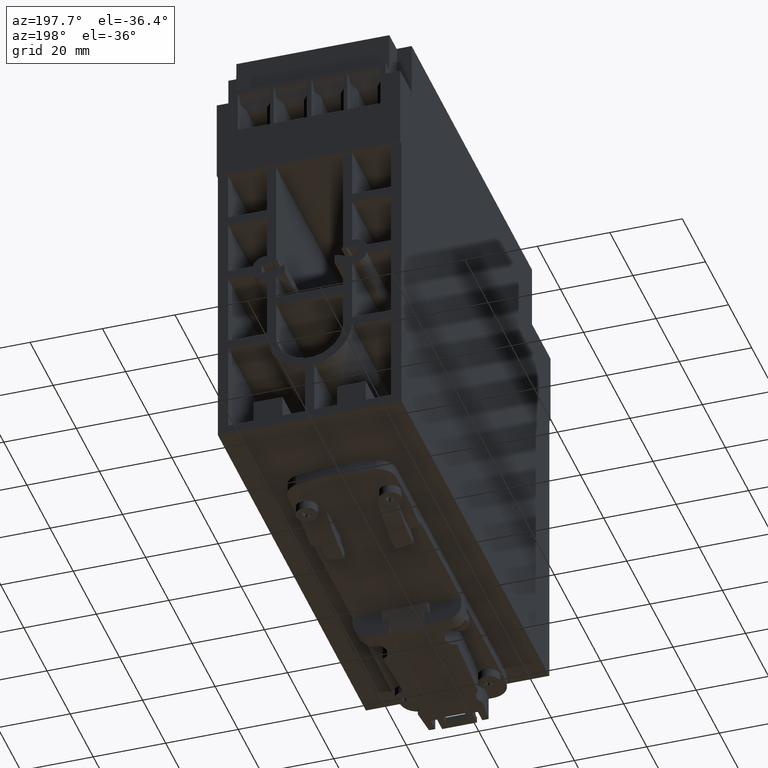
[diagram: clean part render]
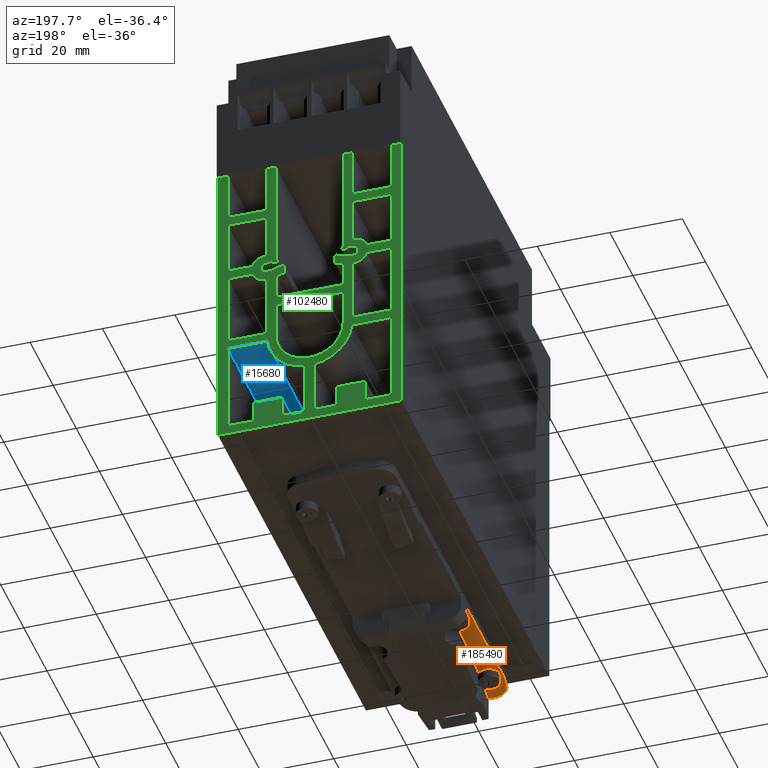
[diagram: same view with three faces highlighted in distinct colors, each labeled with its STEP entity id]
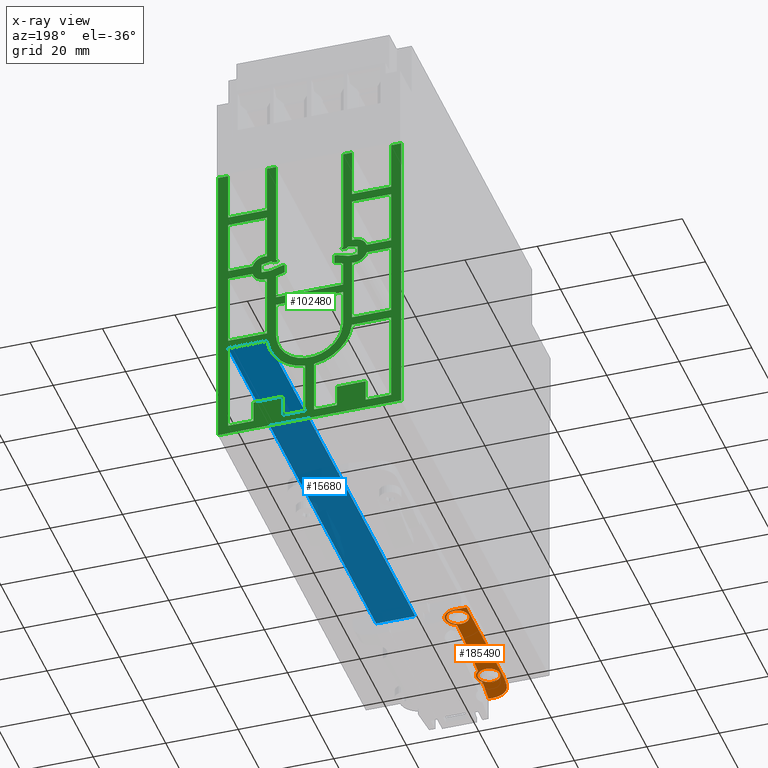
[diagram: x-ray of the same camera — body ghosted, the three highlighted faces saturated]
A machine part, auxiliary view with three faces highlighted in distinct colors.
The next image is the same camera in x-ray (body ghosted, the three faces saturated) — at least one of them is partly hidden behind the body in this view.
Their STEP definitions:

[orange] entity #185490 — the highlighted planar face has unit normal (0, 0, -1).
#142360=CARTESIAN_POINT('',(-9.64101615137754,19.,23.));
#142370=VERTEX_POINT('',#142360);
#142400=CARTESIAN_POINT('',(-9.64101615137754,19.,18.));
#142410=DIRECTION('',(0.,-1.,0.));
#142420=DIRECTION('',(0.,0.,1.));
#142430=AXIS2_PLACEMENT_3D('',#142400,#142410,#142420);
#142440=CIRCLE('',#142430,5.);
#142450=CARTESIAN_POINT('',(-14.5897327444315,19.,18.7142857142857));
#142460=VERTEX_POINT('',#142450);
#142470=EDGE_CURVE('',#142370,#142460,#142440,.T.);
#158770=CARTESIAN_POINT('',(-15.,19.,13.));
#158780=VERTEX_POINT('',#158770);
#158810=CARTESIAN_POINT('',(-15.,19.,-41.8023651948));
#158820=DIRECTION('',(0.,0.,1.));
#158830=VECTOR('',#158820,1.);
#158840=LINE('',#158810,#158830);
#158850=CARTESIAN_POINT('',(-15.,19.,-17.35));
#158860=VERTEX_POINT('',#158850);
#158870=EDGE_CURVE('',#158860,#158780,#158840,.T.);
#181780=CARTESIAN_POINT('',(-8.21648376099848,19.,23.));
#181790=VERTEX_POINT('',#181780);
#181820=CARTESIAN_POINT('',(25.,19.,23.));
#181830=DIRECTION('',(1.,0.,0.));
#181840=VECTOR('',#181830,1.);
#181850=LINE('',#181820,#181840);
#181860=EDGE_CURVE('',#142370,#181790,#181850,.T.);
#184400=CARTESIAN_POINT('',(-11.5,19.,-17.35));
#184410=VERTEX_POINT('',#184400);
#184440=CARTESIAN_POINT('',(-11.5,19.,-13.85));
#184450=DIRECTION('',(0.,-1.,0.));
#184460=DIRECTION('',(-1.,0.,0.));
#184470=AXIS2_PLACEMENT_3D('',#184440,#184450,#184460);
#184480=CIRCLE('',#184470,3.5);
#184490=CARTESIAN_POINT('',(-10.2342996994727,19.,-10.5868722444192));
#184500=VERTEX_POINT('',#184490);
#184510=EDGE_CURVE('',#184410,#184500,#184480,.T.);
#184700=CARTESIAN_POINT('',(1.06581410364015E-14,19.,-39.6));
#184710=DIRECTION('',(0.,-1.,0.));
#184720=DIRECTION('',(0.,0.,1.));
#184730=AXIS2_PLACEMENT_3D('',#184700,#184710,#184720);
#184740=PLANE('',#184730);
#184750=CARTESIAN_POINT('',(-11.5,19.,13.15));
#184760=DIRECTION('',(0.,-1.,0.));
#184770=DIRECTION('',(-1.,0.,-3.81561616076775E-17));
#184780=AXIS2_PLACEMENT_3D('',#184750,#184760,#184770);
#184790=CIRCLE('',#184780,3.);
#184800=CARTESIAN_POINT('',(-14.5,19.,13.15));
#184810=VERTEX_POINT('',#184800);
#184820=CARTESIAN_POINT('',(-8.5,19.,13.15));
#184830=VERTEX_POINT('',#184820);
#184840=EDGE_CURVE('',#184810,#184830,#184790,.T.);
#184850=ORIENTED_EDGE('',*,*,#184840,.F.);
#184860=EDGE_CURVE('',#184830,#184810,#184790,.T.);
#184870=ORIENTED_EDGE('',*,*,#184860,.F.);
#184880=EDGE_LOOP('',(#184870,#184850));
#184890=FACE_BOUND('',#184880,.T.);
#184900=CARTESIAN_POINT('',(-11.5,19.,-13.85));
#184910=DIRECTION('',(0.,-1.,0.));
#184920=DIRECTION('',(0.,0.,1.));
#184930=AXIS2_PLACEMENT_3D('',#184900,#184910,#184920);
#184940=CIRCLE('',#184930,3.);
#184950=CARTESIAN_POINT('',(-11.5,19.,-10.85));
#184960=VERTEX_POINT('',#184950);
#184970=CARTESIAN_POINT('',(-11.5,19.,-16.85));
#184980=VERTEX_POINT('',#184970);
#184990=EDGE_CURVE('',#184960,#184980,#184940,.T.);
#185000=ORIENTED_EDGE('',*,*,#184990,.F.);
#185010=EDGE_CURVE('',#184980,#184960,#184940,.T.);
#185020=ORIENTED_EDGE('',*,*,#185010,.F.);
#185030=EDGE_LOOP('',(#185020,#185000));
#185040=FACE_BOUND('',#185030,.T.);
#185050=ORIENTED_EDGE('',*,*,#142470,.T.);
#185060=ORIENTED_EDGE('',*,*,#181860,.F.);
#185070=CARTESIAN_POINT('',(391.2,19.,-17.85));
#185080=DIRECTION('',(0.,-1.,0.));
#185090=DIRECTION('',(0.,0.,-1.));
#185100=AXIS2_PLACEMENT_3D('',#185070,#185080,#185090);
#185110=CIRCLE('',#185100,401.5);
#185120=CARTESIAN_POINT('',(-8.91199221675921,19.,15.5063140100346));
#185130=VERTEX_POINT('',#185120);
#185140=EDGE_CURVE('',#181790,#185130,#185110,.T.);
#185150=ORIENTED_EDGE('',*,*,#185140,.F.);
#185160=CARTESIAN_POINT('',(-11.5,19.,13.15));
#185170=DIRECTION('',(0.,-1.,0.));
#185180=DIRECTION('',(-1.,0.,0.));
#185190=AXIS2_PLACEMENT_3D('',#185160,#185170,#185180);
#185200=CIRCLE('',#185190,3.5);
#185210=CARTESIAN_POINT('',(-9.30312722696155,19.,10.4253440549159));
#185220=VERTEX_POINT('',#185210);
#185230=EDGE_CURVE('',#185220,#185130,#185200,.T.);
#185240=ORIENTED_EDGE('',*,*,#185230,.T.);
#185250=CARTESIAN_POINT('',(391.2,19.,-17.85));
#185260=DIRECTION('',(0.,-1.,0.));
#185270=DIRECTION('',(0.,0.,-1.));
#185280=AXIS2_PLACEMENT_3D('',#185250,#185260,#185270);
#185290=CIRCLE('',#185280,401.5);
#185300=EDGE_CURVE('',#185220,#184500,#185290,.T.);
#185310=ORIENTED_EDGE('',*,*,#185300,.F.);
#185320=ORIENTED_EDGE('',*,*,#184510,.T.);
#185330=CARTESIAN_POINT('',(25.,19.,-17.35));
#185340=DIRECTION('',(1.,0.,0.));
#185350=VECTOR('',#185340,1.);
#185360=LINE('',#185330,#185350);
#185370=EDGE_CURVE('',#158860,#184410,#185360,.T.);
#185380=ORIENTED_EDGE('',*,*,#185370,.T.);
#185390=ORIENTED_EDGE('',*,*,#158870,.F.);
#185400=CARTESIAN_POINT('',(25.,19.,13.));
#185410=DIRECTION('',(0.,-1.,0.));
#185420=DIRECTION('',(-1.,0.,0.));
#185430=AXIS2_PLACEMENT_3D('',#185400,#185410,#185420);
#185440=CIRCLE('',#185430,40.);
#185450=EDGE_CURVE('',#142460,#158780,#185440,.T.);
#185460=ORIENTED_EDGE('',*,*,#185450,.T.);
#185470=EDGE_LOOP('',(#185460,#185390,#185380,#185320,#185310,#185240,
#185150,#185060,#185050));
#185480=FACE_OUTER_BOUND('',#185470,.T.);
#185490=ADVANCED_FACE('',(#184890,#185040,#185480),#184740,.T.);

[blue] entity #15680 — the highlighted planar face has unit normal (-0, 0, -1).
#6520=CARTESIAN_POINT('',(22.5,49.75,22.));
#6530=VERTEX_POINT('',#6520);
#6560=CARTESIAN_POINT('',(0.,49.75,22.));
#6570=DIRECTION('',(1.,0.,0.));
#6580=VECTOR('',#6570,1.);
#6590=LINE('',#6560,#6580);
#6600=CARTESIAN_POINT('',(11.6833214455479,49.75,22.));
#6610=VERTEX_POINT('',#6600);
#6620=EDGE_CURVE('',#6610,#6530,#6590,.T.);
#13130=CARTESIAN_POINT('',(22.5,49.75,-106.));
#13140=VERTEX_POINT('',#13130);
#13170=CARTESIAN_POINT('',(22.5,49.75,0.));
#13180=DIRECTION('',(0.,0.,-1.));
#13190=VECTOR('',#13180,1.);
#13200=LINE('',#13170,#13190);
#13210=EDGE_CURVE('',#6530,#13140,#13200,.T.);
#15260=CARTESIAN_POINT('',(11.6833214455479,49.75,22.076323));
#15270=DIRECTION('',(0.,0.,-1.));
#15280=VECTOR('',#15270,1.);
#15290=LINE('',#15260,#15280);
#15300=CARTESIAN_POINT('',(11.6833214455479,49.75,-106.));
#15310=VERTEX_POINT('',#15300);
#15320=EDGE_CURVE('',#6610,#15310,#15290,.T.);
#15520=CARTESIAN_POINT('',(22.7717399638613,49.75,22.076323));
#15530=DIRECTION('',(-0.,-1.,-0.));
#15540=DIRECTION('',(-1.,0.,0.));
#15550=AXIS2_PLACEMENT_3D('',#15520,#15530,#15540);
#15560=PLANE('',#15550);
#15570=ORIENTED_EDGE('',*,*,#13210,.F.);
#15580=CARTESIAN_POINT('',(0.,49.75,-106.));
#15590=DIRECTION('',(-1.,0.,0.));
#15600=VECTOR('',#15590,1.);
#15610=LINE('',#15580,#15600);
#15620=EDGE_CURVE('',#13140,#15310,#15610,.T.);
#15630=ORIENTED_EDGE('',*,*,#15620,.F.);
#15640=ORIENTED_EDGE('',*,*,#15320,.T.);
#15650=ORIENTED_EDGE('',*,*,#6620,.F.);
#15660=EDGE_LOOP('',(#15650,#15640,#15630,#15570));
#15670=FACE_OUTER_BOUND('',#15660,.T.);
#15680=ADVANCED_FACE('',(#15670),#15560,.T.);

[green] entity #102480 — the highlighted planar face has unit normal (0, 1, 0).
#1510=CARTESIAN_POINT('',(25.2993386672442,106.,-106.));
#1520=VERTEX_POINT('',#1510);
#1550=CARTESIAN_POINT('',(25.2993386672442,0.,-106.));
#1560=DIRECTION('',(0.,-1.,0.));
#1570=VECTOR('',#1560,1.);
#1580=LINE('',#1550,#1570);
#1590=CARTESIAN_POINT('',(25.2993386672442,22.,-106.));
#1600=VERTEX_POINT('',#1590);
#1610=EDGE_CURVE('',#1520,#1600,#1580,.T.);
#2020=CARTESIAN_POINT('',(-15.7499999999949,75.,-106.));
#2030=VERTEX_POINT('',#2020);
#2180=CARTESIAN_POINT('',(-22.5,75.,-106.));
#2190=VERTEX_POINT('',#2180);
#2220=CARTESIAN_POINT('',(0.,75.,-106.));
#2230=DIRECTION('',(1.,0.,0.));
#2240=VECTOR('',#2230,1.);
#2250=LINE('',#2220,#2240);
#2260=EDGE_CURVE('',#2190,#2030,#2250,.T.);
#3390=CARTESIAN_POINT('',(0.,22.,-106.));
#3400=DIRECTION('',(-1.,0.,0.));
#3410=VECTOR('',#3400,1.);
#3420=LINE('',#3390,#3410);
#3430=CARTESIAN_POINT('',(-25.3,22.,-106.));
#3440=VERTEX_POINT('',#3430);
#3450=EDGE_CURVE('',#1600,#3440,#3420,.T.);
#11310=CARTESIAN_POINT('',(9.24999999999998,51.,-106.));
#11320=VERTEX_POINT('',#11310);
#11350=CARTESIAN_POINT('',(9.25,0.,-106.));
#11360=DIRECTION('',(0.,1.,0.));
#11370=VECTOR('',#11360,1.);
#11380=LINE('',#11350,#11370);
#11390=CARTESIAN_POINT('',(9.25,61.,-106.));
#11400=VERTEX_POINT('',#11390);
#11410=EDGE_CURVE('',#11320,#11400,#11380,.T.);
#11660=CARTESIAN_POINT('',(0.,61.,-106.));
#11670=DIRECTION('',(-1.,0.,0.));
#11680=VECTOR('',#11670,1.);
#11690=LINE('',#11660,#11680);
#11700=CARTESIAN_POINT('',(-9.25,61.,-106.));
#11710=VERTEX_POINT('',#11700);
#11720=EDGE_CURVE('',#11400,#11710,#11690,.T.);
#11970=CARTESIAN_POINT('',(-9.25,0.,-106.));
#11980=DIRECTION('',(0.,-1.,0.));
#11990=VECTOR('',#11980,1.);
#12000=LINE('',#11970,#11990);
#12010=CARTESIAN_POINT('',(-9.24999999999998,51.,-106.));
#12020=VERTEX_POINT('',#12010);
#12030=EDGE_CURVE('',#11710,#12020,#12000,.T.);
#12290=CARTESIAN_POINT('',(0.,51.,-106.));
#12300=DIRECTION('',(0.,0.,1.));
#12310=DIRECTION('',(1.,0.,0.));
#12320=AXIS2_PLACEMENT_3D('',#12290,#12300,#12310);
#12330=CIRCLE('',#12320,9.24999999999998);
#12340=EDGE_CURVE('',#12020,#11320,#12330,.T.);
#13050=CARTESIAN_POINT('',(22.5,24.5,-106.));
#13060=VERTEX_POINT('',#13050);
#13090=CARTESIAN_POINT('',(22.5,0.,-106.));
#13100=DIRECTION('',(0.,1.,0.));
#13110=VECTOR('',#13100,1.);
#13120=LINE('',#13090,#13110);
#13130=CARTESIAN_POINT('',(22.5,49.75,-106.));
#13140=VERTEX_POINT('',#13130);
#13150=EDGE_CURVE('',#13060,#13140,#13120,.T.);
#13430=CARTESIAN_POINT('',(15.5,24.5,-106.));
#13440=VERTEX_POINT('',#13430);
#13470=CARTESIAN_POINT('',(0.,24.5,-106.));
#13480=DIRECTION('',(1.,0.,0.));
#13490=VECTOR('',#13480,1.);
#13500=LINE('',#13470,#13490);
#13510=EDGE_CURVE('',#13440,#13060,#13500,.T.);
#13740=CARTESIAN_POINT('',(15.5,30.5,-106.));
#13750=VERTEX_POINT('',#13740);
#13780=CARTESIAN_POINT('',(15.5,0.,-106.));
#13790=DIRECTION('',(0.,-1.,0.));
#13800=VECTOR('',#13790,1.);
#13810=LINE('',#13780,#13800);
#13820=EDGE_CURVE('',#13750,#13440,#13810,.T.);
#14050=CARTESIAN_POINT('',(7.5,30.5,-106.));
#14060=VERTEX_POINT('',#14050);
#14090=CARTESIAN_POINT('',(0.,30.5,-106.));
#14100=DIRECTION('',(1.,0.,0.));
#14110=VECTOR('',#14100,1.);
#14120=LINE('',#14090,#14110);
#14130=EDGE_CURVE('',#14060,#13750,#14120,.T.);
#14360=CARTESIAN_POINT('',(7.5,24.5,-106.));
#14370=VERTEX_POINT('',#14360);
#14400=CARTESIAN_POINT('',(7.5,0.,-106.));
#14410=DIRECTION('',(0.,1.,0.));
#14420=VECTOR('',#14410,1.);
#14430=LINE('',#14400,#14420);
#14440=EDGE_CURVE('',#14370,#14060,#14430,.T.);
#14670=CARTESIAN_POINT('',(1.25,24.5,-106.));
#14680=VERTEX_POINT('',#14670);
#14710=CARTESIAN_POINT('',(0.,24.5,-106.));
#14720=DIRECTION('',(1.,0.,0.));
#14730=VECTOR('',#14720,1.);
#14740=LINE('',#14710,#14730);
#14750=EDGE_CURVE('',#14680,#14370,#14740,.T.);
#14980=CARTESIAN_POINT('',(1.25,39.3166785544521,-106.));
#14990=VERTEX_POINT('',#14980);
#15020=CARTESIAN_POINT('',(1.25,0.,-106.));
#15030=DIRECTION('',(0.,-1.,0.));
#15040=VECTOR('',#15030,1.);
#15050=LINE('',#15020,#15040);
#15060=EDGE_CURVE('',#14990,#14680,#15050,.T.);
#15300=CARTESIAN_POINT('',(11.6833214455479,49.75,-106.));
#15310=VERTEX_POINT('',#15300);
#15340=CARTESIAN_POINT('',(2.1316282072803E-14,51.,-106.));
#15350=DIRECTION('',(0.,0.,-1.));
#15360=DIRECTION('',(-1.,0.,0.));
#15370=AXIS2_PLACEMENT_3D('',#15340,#15350,#15360);
#15380=CIRCLE('',#15370,11.75);
#15390=EDGE_CURVE('',#15310,#14990,#15380,.T.);
#15580=CARTESIAN_POINT('',(0.,49.75,-106.));
#15590=DIRECTION('',(-1.,0.,0.));
#15600=VECTOR('',#15590,1.);
#15610=LINE('',#15580,#15600);
#15620=EDGE_CURVE('',#13140,#15310,#15610,.T.);
#16240=CARTESIAN_POINT('',(11.75,52.25,-106.));
#16250=VERTEX_POINT('',#16240);
#16280=CARTESIAN_POINT('',(0.,52.25,-106.));
#16290=DIRECTION('',(1.,0.,0.));
#16300=VECTOR('',#16290,1.);
#16310=LINE('',#16280,#16300);
#16320=CARTESIAN_POINT('',(22.5,52.25,-106.));
#16330=VERTEX_POINT('',#16320);
#16340=EDGE_CURVE('',#16250,#16330,#16310,.T.);
#16620=CARTESIAN_POINT('',(11.75,70.0450336350756,-106.));
#16630=VERTEX_POINT('',#16620);
#16660=CARTESIAN_POINT('',(11.75,0.,-106.));
#16670=DIRECTION('',(0.,-1.,0.));
#16680=VECTOR('',#16670,1.);
#16690=LINE('',#16660,#16680);
#16700=EDGE_CURVE('',#16630,#16250,#16690,.T.);
#16940=CARTESIAN_POINT('',(15.7499999999949,72.5,-106.));
#16950=VERTEX_POINT('',#16940);
#16980=CARTESIAN_POINT('',(12.39167088138,73.4857106731,-106.));
#16990=DIRECTION('',(0.,0.,-1.));
#17000=DIRECTION('',(-1.,0.,0.));
#17010=AXIS2_PLACEMENT_3D('',#16980,#16990,#17000);
#17020=CIRCLE('',#17010,3.49999999999997);
#17030=EDGE_CURVE('',#16950,#16630,#17020,.T.);
#17250=CARTESIAN_POINT('',(22.5,72.5,-106.));
#17260=VERTEX_POINT('',#17250);
#17290=CARTESIAN_POINT('',(0.,72.5,-106.));
#17300=DIRECTION('',(-1.,0.,0.));
#17310=VECTOR('',#17300,1.);
#17320=LINE('',#17290,#17310);
#17330=EDGE_CURVE('',#17260,#16950,#17320,.T.);
#17530=CARTESIAN_POINT('',(22.5,0.,-106.));
#17540=DIRECTION('',(0.,1.,0.));
#17550=VECTOR('',#17540,1.);
#17560=LINE('',#17530,#17550);
#17570=EDGE_CURVE('',#16330,#17260,#17560,.T.);
#18110=CARTESIAN_POINT('',(-11.75,77.4549663649245,-106.));
#18120=VERTEX_POINT('',#18110);
#18150=CARTESIAN_POINT('',(-11.75,0.,-106.));
#18160=DIRECTION('',(0.,1.,0.));
#18170=VECTOR('',#18160,1.);
#18180=LINE('',#18150,#18170);
#18190=CARTESIAN_POINT('',(-11.75,90.,-106.));
#18200=VERTEX_POINT('',#18190);
#18210=EDGE_CURVE('',#18120,#18200,#18180,.T.);
#18470=CARTESIAN_POINT('',(-12.39167088138,74.0142893269,-106.));
#18480=DIRECTION('',(0.,0.,-1.));
#18490=DIRECTION('',(-1.,0.,0.));
#18500=AXIS2_PLACEMENT_3D('',#18470,#18480,#18490);
#18510=CIRCLE('',#18500,3.50000000000004);
#18520=EDGE_CURVE('',#2030,#18120,#18510,.T.);
#19210=CARTESIAN_POINT('',(-22.5,90.,-106.));
#19220=VERTEX_POINT('',#19210);
#19250=CARTESIAN_POINT('',(-22.5,0.,-106.));
#19260=DIRECTION('',(0.,-1.,0.));
#19270=VECTOR('',#19260,1.);
#19280=LINE('',#19250,#19270);
#19290=EDGE_CURVE('',#19220,#2190,#19280,.T.);
#19490=CARTESIAN_POINT('',(0.,90.,-106.));
#19500=DIRECTION('',(-1.,0.,0.));
#19510=VECTOR('',#19500,1.);
#19520=LINE('',#19490,#19510);
#19530=EDGE_CURVE('',#18200,#19220,#19520,.T.);
#20270=CARTESIAN_POINT('',(-7.5,30.5,-106.));
#20280=VERTEX_POINT('',#20270);
#20310=CARTESIAN_POINT('',(-7.5,0.,-106.));
#20320=DIRECTION('',(0.,-1.,0.));
#20330=VECTOR('',#20320,1.);
#20340=LINE('',#20310,#20330);
#20350=CARTESIAN_POINT('',(-7.5,24.5,-106.));
#20360=VERTEX_POINT('',#20350);
#20370=EDGE_CURVE('',#20280,#20360,#20340,.T.);
#20650=CARTESIAN_POINT('',(-15.5,30.5,-106.));
#20660=VERTEX_POINT('',#20650);
#20690=CARTESIAN_POINT('',(0.,30.5,-106.));
#20700=DIRECTION('',(1.,0.,0.));
#20710=VECTOR('',#20700,1.);
#20720=LINE('',#20690,#20710);
#20730=EDGE_CURVE('',#20660,#20280,#20720,.T.);
#20960=CARTESIAN_POINT('',(-15.5,24.5,-106.));
#20970=VERTEX_POINT('',#20960);
#21000=CARTESIAN_POINT('',(-15.5,0.,-106.));
#21010=DIRECTION('',(0.,1.,0.));
#21020=VECTOR('',#21010,1.);
#21030=LINE('',#21000,#21020);
#21040=EDGE_CURVE('',#20970,#20660,#21030,.T.);
#21270=CARTESIAN_POINT('',(-22.5,24.5,-106.));
#21280=VERTEX_POINT('',#21270);
#21310=CARTESIAN_POINT('',(0.,24.5,-106.));
#21320=DIRECTION('',(1.,0.,0.));
#21330=VECTOR('',#21320,1.);
#21340=LINE('',#21310,#21330);
#21350=EDGE_CURVE('',#21280,#20970,#21340,.T.);
#21580=CARTESIAN_POINT('',(-22.5,49.75,-106.));
#21590=VERTEX_POINT('',#21580);
#21620=CARTESIAN_POINT('',(-22.5,0.,-106.));
#21630=DIRECTION('',(0.,-1.,0.));
#21640=VECTOR('',#21630,1.);
#21650=LINE('',#21620,#21640);
#21660=EDGE_CURVE('',#21590,#21280,#21650,.T.);
#21890=CARTESIAN_POINT('',(-11.6833214455479,49.75,-106.));
#21900=VERTEX_POINT('',#21890);
#21930=CARTESIAN_POINT('',(0.,49.75,-106.));
#21940=DIRECTION('',(-1.,0.,0.));
#21950=VECTOR('',#21940,1.);
#21960=LINE('',#21930,#21950);
#21970=EDGE_CURVE('',#21900,#21590,#21960,.T.);
#22210=CARTESIAN_POINT('',(-1.25,39.3166785544521,-106.));
#22220=VERTEX_POINT('',#22210);
#22250=CARTESIAN_POINT('',(-1.4210854715202E-14,51.,-106.));
#22260=DIRECTION('',(0.,0.,-1.));
#22270=DIRECTION('',(-1.,0.,0.));
#22280=AXIS2_PLACEMENT_3D('',#22250,#22260,#22270);
#22290=CIRCLE('',#22280,11.75);
#22300=EDGE_CURVE('',#22220,#21900,#22290,.T.);
#22520=CARTESIAN_POINT('',(-1.25,24.5,-106.));
#22530=VERTEX_POINT('',#22520);
#22560=CARTESIAN_POINT('',(-1.25,0.,-106.));
#22570=DIRECTION('',(0.,1.,0.));
#22580=VECTOR('',#22570,1.);
#22590=LINE('',#22560,#22580);
#22600=EDGE_CURVE('',#22530,#22220,#22590,.T.);
#22800=CARTESIAN_POINT('',(0.,24.5,-106.));
#22810=DIRECTION('',(1.,0.,0.));
#22820=VECTOR('',#22810,1.);
#22830=LINE('',#22800,#22820);
#22840=EDGE_CURVE('',#20360,#22530,#22830,.T.);
#23870=CARTESIAN_POINT('',(11.75,77.4549663649245,-106.));
#23880=VERTEX_POINT('',#23870);
#23910=CARTESIAN_POINT('',(12.39167088138,74.0142893269001,-106.));
#23920=DIRECTION('',(0.,0.,-1.));
#23930=DIRECTION('',(-1.,0.,0.));
#23940=AXIS2_PLACEMENT_3D('',#23910,#23920,#23930);
#23950=CIRCLE('',#23940,3.49999999999991);
#23960=CARTESIAN_POINT('',(15.7499999999949,75.,-106.));
#23970=VERTEX_POINT('',#23960);
#23980=EDGE_CURVE('',#23880,#23970,#23950,.T.);
#24250=CARTESIAN_POINT('',(11.75,90.,-106.));
#24260=VERTEX_POINT('',#24250);
#24290=CARTESIAN_POINT('',(11.75,0.,-106.));
#24300=DIRECTION('',(0.,-1.,0.));
#24310=VECTOR('',#24300,1.);
#24320=LINE('',#24290,#24310);
#24330=EDGE_CURVE('',#24260,#23880,#24320,.T.);
#24560=CARTESIAN_POINT('',(22.5,90.,-106.));
#24570=VERTEX_POINT('',#24560);
#24600=CARTESIAN_POINT('',(0.,90.,-106.));
#24610=DIRECTION('',(-1.,0.,0.));
#24620=VECTOR('',#24610,1.);
#24630=LINE('',#24600,#24620);
#24640=EDGE_CURVE('',#24570,#24260,#24630,.T.);
#24870=CARTESIAN_POINT('',(22.5,75.,-106.));
#24880=VERTEX_POINT('',#24870);
#24910=CARTESIAN_POINT('',(22.5,0.,-106.));
#24920=DIRECTION('',(0.,1.,0.));
#24930=VECTOR('',#24920,1.);
#24940=LINE('',#24910,#24930);
#24950=EDGE_CURVE('',#24880,#24570,#24940,.T.);
#25150=CARTESIAN_POINT('',(0.,75.,-106.));
#25160=DIRECTION('',(1.,0.,0.));
#25170=VECTOR('',#25160,1.);
#25180=LINE('',#25150,#25170);
#25190=EDGE_CURVE('',#23970,#24880,#25180,.T.);
#25890=CARTESIAN_POINT('',(-22.5,52.25,-106.));
#25900=VERTEX_POINT('',#25890);
#25930=CARTESIAN_POINT('',(0.,52.25,-106.));
#25940=DIRECTION('',(1.,0.,0.));
#25950=VECTOR('',#25940,1.);
#25960=LINE('',#25930,#25950);
#25970=CARTESIAN_POINT('',(-11.75,52.25,-106.));
#25980=VERTEX_POINT('',#25970);
#25990=EDGE_CURVE('',#25900,#25980,#25960,.T.);
#26270=CARTESIAN_POINT('',(-22.5,72.5,-106.));
#26280=VERTEX_POINT('',#26270);
#26310=CARTESIAN_POINT('',(-22.5,0.,-106.));
#26320=DIRECTION('',(0.,-1.,0.));
#26330=VECTOR('',#26320,1.);
#26340=LINE('',#26310,#26330);
#26350=EDGE_CURVE('',#26280,#25900,#26340,.T.);
#26580=CARTESIAN_POINT('',(-15.7499999999949,72.5,-106.));
#26590=VERTEX_POINT('',#26580);
#26620=CARTESIAN_POINT('',(0.,72.5,-106.));
#26630=DIRECTION('',(-1.,0.,0.));
#26640=VECTOR('',#26630,1.);
#26650=LINE('',#26620,#26640);
#26660=EDGE_CURVE('',#26590,#26280,#26650,.T.);
#26900=CARTESIAN_POINT('',(-11.75,70.0450336350755,-106.));
#26910=VERTEX_POINT('',#26900);
#26940=CARTESIAN_POINT('',(-12.39167088138,73.4857106731,-106.));
#26950=DIRECTION('',(0.,0.,-1.));
#26960=DIRECTION('',(-1.,0.,0.));
#26970=AXIS2_PLACEMENT_3D('',#26940,#26950,#26960);
#26980=CIRCLE('',#26970,3.50000000000002);
#26990=EDGE_CURVE('',#26910,#26590,#26980,.T.);
#27180=CARTESIAN_POINT('',(-11.75,0.,-106.));
#27190=DIRECTION('',(0.,1.,0.));
#27200=VECTOR('',#27190,1.);
#27210=LINE('',#27180,#27200);
#27220=EDGE_CURVE('',#25980,#26910,#27210,.T.);
#27820=CARTESIAN_POINT('',(9.25,106.,-106.));
#27830=VERTEX_POINT('',#27820);
#27860=CARTESIAN_POINT('',(0.,106.,-106.));
#27870=DIRECTION('',(-1.,0.,0.));
#27880=VECTOR('',#27870,1.);
#27890=LINE('',#27860,#27880);
#27900=CARTESIAN_POINT('',(11.75,106.,-106.));
#27910=VERTEX_POINT('',#27900);
#27920=EDGE_CURVE('',#27910,#27830,#27890,.T.);
#28020=CARTESIAN_POINT('',(0.,106.,-106.));
#28030=DIRECTION('',(-1.,0.,0.));
#28040=VECTOR('',#28030,1.);
#28050=LINE('',#28020,#28040);
#28060=CARTESIAN_POINT('',(-9.25,106.,-106.));
#28070=VERTEX_POINT('',#28060);
#28080=CARTESIAN_POINT('',(-11.75,106.,-106.));
#28090=VERTEX_POINT('',#28080);
#28100=EDGE_CURVE('',#28070,#28090,#28050,.T.);
#28310=CARTESIAN_POINT('',(-25.3,106.,-106.));
#28320=VERTEX_POINT('',#28310);
#28370=CARTESIAN_POINT('',(0.,106.,-106.));
#28380=DIRECTION('',(-1.,0.,0.));
#28390=VECTOR('',#28380,1.);
#28400=LINE('',#28370,#28390);
#28410=CARTESIAN_POINT('',(-22.5,106.,-106.));
#28420=VERTEX_POINT('',#28410);
#28430=EDGE_CURVE('',#28420,#28320,#28400,.T.);
#28680=CARTESIAN_POINT('',(22.5,106.,-106.));
#28690=VERTEX_POINT('',#28680);
#28720=CARTESIAN_POINT('',(0.,106.,-106.));
#28730=DIRECTION('',(-1.,0.,0.));
#28740=VECTOR('',#28730,1.);
#28750=LINE('',#28720,#28740);
#28760=EDGE_CURVE('',#1520,#28690,#28750,.T.);
#29010=CARTESIAN_POINT('',(-22.5,0.,-106.));
#29020=DIRECTION('',(0.,-1.,0.));
#29030=VECTOR('',#29020,1.);
#29040=LINE('',#29010,#29030);
#29050=CARTESIAN_POINT('',(-22.5,92.5,-106.));
#29060=VERTEX_POINT('',#29050);
#29070=EDGE_CURVE('',#28420,#29060,#29040,.T.);
#29320=CARTESIAN_POINT('',(0.,92.5,-106.));
#29330=DIRECTION('',(1.,0.,0.));
#29340=VECTOR('',#29330,1.);
#29350=LINE('',#29320,#29340);
#29360=CARTESIAN_POINT('',(-11.75,92.5,-106.));
#29370=VERTEX_POINT('',#29360);
#29380=EDGE_CURVE('',#29060,#29370,#29350,.T.);
#29630=CARTESIAN_POINT('',(-11.75,0.,-106.));
#29640=DIRECTION('',(0.,1.,0.));
#29650=VECTOR('',#29640,1.);
#29660=LINE('',#29630,#29650);
#29670=EDGE_CURVE('',#29370,#28090,#29660,.T.);
#30670=CARTESIAN_POINT('',(11.75,0.,-106.));
#30680=DIRECTION('',(0.,-1.,0.));
#30690=VECTOR('',#30680,1.);
#30700=LINE('',#30670,#30690);
#30710=CARTESIAN_POINT('',(11.75,92.5,-106.));
#30720=VERTEX_POINT('',#30710);
#30730=EDGE_CURVE('',#27910,#30720,#30700,.T.);
#30980=CARTESIAN_POINT('',(0.,92.5,-106.));
#30990=DIRECTION('',(1.,0.,0.));
#31000=VECTOR('',#30990,1.);
#31010=LINE('',#30980,#31000);
#31020=CARTESIAN_POINT('',(22.5,92.5,-106.));
#31030=VERTEX_POINT('',#31020);
#31040=EDGE_CURVE('',#30720,#31030,#31010,.T.);
#31290=CARTESIAN_POINT('',(22.5,0.,-106.));
#31300=DIRECTION('',(0.,1.,0.));
#31310=VECTOR('',#31300,1.);
#31320=LINE('',#31290,#31310);
#31330=EDGE_CURVE('',#31030,#28690,#31320,.T.);
#31530=CARTESIAN_POINT('',(-9.25000000000001,0.,-106.));
#31540=DIRECTION('',(0.,-1.,0.));
#31550=VECTOR('',#31540,1.);
#31560=LINE('',#31530,#31550);
#31570=CARTESIAN_POINT('',(-9.25,75.95710678119,-106.));
#31580=VERTEX_POINT('',#31570);
#31590=EDGE_CURVE('',#28070,#31580,#31560,.T.);
#31830=CARTESIAN_POINT('',(-8.74999999999996,75.95710678119,-106.));
#31840=DIRECTION('',(0.,0.,1.));
#31850=DIRECTION('',(1.,0.,0.));
#31860=AXIS2_PLACEMENT_3D('',#31830,#31840,#31850);
#31870=CIRCLE('',#31860,0.500000000000053);
#31880=CARTESIAN_POINT('',(-8.91666666666704,75.4857022603956,-106.));
#31890=VERTEX_POINT('',#31880);
#31900=EDGE_CURVE('',#31580,#31890,#31870,.T.);
#32170=CARTESIAN_POINT('',(-8.99999999999999,75.25,-106.));
#32180=DIRECTION('',(0.,0.,1.));
#32190=DIRECTION('',(1.,0.,0.));
#32200=AXIS2_PLACEMENT_3D('',#32170,#32180,#32190);
#32210=CIRCLE('',#32200,0.249999999999988);
#32220=CARTESIAN_POINT('',(-9.,75.,-106.));
#32230=VERTEX_POINT('',#32220);
#32240=EDGE_CURVE('',#32230,#31890,#32210,.T.);
#32480=CARTESIAN_POINT('',(0.,75.,-106.));
#32490=DIRECTION('',(-1.,0.,0.));
#32500=VECTOR('',#32490,1.);
#32510=LINE('',#32480,#32500);
#32520=CARTESIAN_POINT('',(-10.099999999999,75.,-106.));
#32530=VERTEX_POINT('',#32520);
#32540=EDGE_CURVE('',#32230,#32530,#32510,.T.);
#32790=CARTESIAN_POINT('',(57.3999999999937,0.,-106.));
#32800=DIRECTION('',(-0.66896473162241,0.743294146247202,0.));
#32810=VECTOR('',#32800,1.);
#32820=LINE('',#32790,#32810);
#32830=CARTESIAN_POINT('',(-10.5500000000017,75.500000000003,-106.));
#32840=VERTEX_POINT('',#32830);
#32850=EDGE_CURVE('',#32530,#32840,#32820,.T.);
#33100=CARTESIAN_POINT('',(0.,77.4537037037069,-106.));
#33110=DIRECTION('',(-0.983282004984463,-0.182089260182295,0.));
#33120=VECTOR('',#33110,1.);
#33130=LINE('',#33100,#33120);
#33140=CARTESIAN_POINT('',(-13.25,75.0000000000034,-106.));
#33150=VERTEX_POINT('',#33140);
#33160=EDGE_CURVE('',#32840,#33150,#33130,.T.);
#33410=CARTESIAN_POINT('',(-13.25,0.,-106.));
#33420=DIRECTION('',(0.,-1.,0.));
#33430=VECTOR('',#33420,1.);
#33440=LINE('',#33410,#33430);
#33450=CARTESIAN_POINT('',(-13.25,72.5,-106.));
#33460=VERTEX_POINT('',#33450);
#33470=EDGE_CURVE('',#33150,#33460,#33440,.T.);
#33720=CARTESIAN_POINT('',(0.,72.5,-106.));
#33730=DIRECTION('',(1.,0.,0.));
#33740=VECTOR('',#33730,1.);
#33750=LINE('',#33720,#33740);
#33760=CARTESIAN_POINT('',(-10.7499999999957,72.5,-106.));
#33770=VERTEX_POINT('',#33760);
#33780=EDGE_CURVE('',#33460,#33770,#33750,.T.);
#34030=CARTESIAN_POINT('',(0.,75.7866048256803,-106.));
#34040=DIRECTION('',(0.956304755963044,0.29237170472271,0.));
#34050=VECTOR('',#34040,1.);
#34060=LINE('',#34030,#34050);
#34070=CARTESIAN_POINT('',(-7.55060773320337,73.4781523779812,-106.));
#34080=VERTEX_POINT('',#34070);
#34090=EDGE_CURVE('',#33770,#34080,#34060,.T.);
#34350=CARTESIAN_POINT('',(-7.40442188084108,72.9999999999997,-106.));
#34360=DIRECTION('',(0.,0.,-1.));
#34370=DIRECTION('',(-1.,0.,0.));
#34380=AXIS2_PLACEMENT_3D('',#34350,#34360,#34370);
#34390=CIRCLE('',#34380,0.50000000000023);
#34400=CARTESIAN_POINT('',(-7.404421880841,73.5,-106.));
#34410=VERTEX_POINT('',#34400);
#34420=EDGE_CURVE('',#34080,#34410,#34390,.T.);
#34660=CARTESIAN_POINT('',(0.,73.5,-106.));
#34670=DIRECTION('',(1.,0.,0.));
#34680=VECTOR('',#34670,1.);
#34690=LINE('',#34660,#34680);
#34700=CARTESIAN_POINT('',(-6.85,73.5,-106.));
#34710=VERTEX_POINT('',#34700);
#34720=EDGE_CURVE('',#34410,#34710,#34690,.T.);
#34970=CARTESIAN_POINT('',(-6.85,0.,-106.));
#34980=DIRECTION('',(0.,-1.,0.));
#34990=VECTOR('',#34980,1.);
#35000=LINE('',#34970,#34990);
#35010=CARTESIAN_POINT('',(-6.85,71.0781202664663,-106.));
#35020=VERTEX_POINT('',#35010);
#35030=EDGE_CURVE('',#34710,#35020,#35000,.T.);
#35280=CARTESIAN_POINT('',(0.,73.1723754344579,-106.));
#35290=DIRECTION('',(-0.956304755963044,-0.29237170472271,0.));
#35300=VECTOR('',#35290,1.);
#35310=LINE('',#35280,#35300);
#35320=CARTESIAN_POINT('',(-9.25,70.3443666309656,-106.));
#35330=VERTEX_POINT('',#35320);
#35340=EDGE_CURVE('',#35020,#35330,#35310,.T.);
#35590=CARTESIAN_POINT('',(-9.25,0.,-106.));
#35600=DIRECTION('',(0.,-1.,0.));
#35610=VECTOR('',#35600,1.);
#35620=LINE('',#35590,#35610);
#35630=CARTESIAN_POINT('',(-9.25,63.5,-106.));
#35640=VERTEX_POINT('',#35630);
#35650=EDGE_CURVE('',#35330,#35640,#35620,.T.);
#35900=CARTESIAN_POINT('',(0.,63.5,-106.));
#35910=DIRECTION('',(1.,0.,0.));
#35920=VECTOR('',#35910,1.);
#35930=LINE('',#35900,#35920);
#35940=CARTESIAN_POINT('',(9.25,63.5,-106.));
#35950=VERTEX_POINT('',#35940);
#35960=EDGE_CURVE('',#35640,#35950,#35930,.T.);
#36210=CARTESIAN_POINT('',(9.25,0.,-106.));
#36220=DIRECTION('',(0.,1.,0.));
#36230=VECTOR('',#36220,1.);
#36240=LINE('',#36210,#36230);
#36250=CARTESIAN_POINT('',(9.25,70.3443666309656,-106.));
#36260=VERTEX_POINT('',#36250);
#36270=EDGE_CURVE('',#35950,#36260,#36240,.T.);
#36520=CARTESIAN_POINT('',(0.,73.1723754344579,-106.));
#36530=DIRECTION('',(-0.956304755963044,0.29237170472271,0.));
#36540=VECTOR('',#36530,1.);
#36550=LINE('',#36520,#36540);
#36560=CARTESIAN_POINT('',(6.85,71.0781202664663,-106.));
#36570=VERTEX_POINT('',#36560);
#36580=EDGE_CURVE('',#36260,#36570,#36550,.T.);
#36830=CARTESIAN_POINT('',(6.85,0.,-106.));
#36840=DIRECTION('',(0.,1.,0.));
#36850=VECTOR('',#36840,1.);
#36860=LINE('',#36830,#36850);
#36870=CARTESIAN_POINT('',(6.85,73.5,-106.));
#36880=VERTEX_POINT('',#36870);
#36890=EDGE_CURVE('',#36570,#36880,#36860,.T.);
#37140=CARTESIAN_POINT('',(0.,73.5,-106.));
#37150=DIRECTION('',(1.,0.,0.));
#37160=VECTOR('',#37150,1.);
#37170=LINE('',#37140,#37160);
#37180=CARTESIAN_POINT('',(7.404421880841,73.5,-106.));
#37190=VERTEX_POINT('',#37180);
#37200=EDGE_CURVE('',#36880,#37190,#37170,.T.);
#37460=CARTESIAN_POINT('',(7.40442188084104,73.0000000000003,-106.));
#37470=DIRECTION('',(0.,0.,-1.));
#37480=DIRECTION('',(-1.,0.,0.));
#37490=AXIS2_PLACEMENT_3D('',#37460,#37470,#37480);
#37500=CIRCLE('',#37490,0.499999999999711);
#37510=CARTESIAN_POINT('',(7.55060773320395,73.4781523779831,-106.));
#37520=VERTEX_POINT('',#37510);
#37530=EDGE_CURVE('',#37190,#37520,#37500,.T.);
#37770=CARTESIAN_POINT('',(0.,75.7866048256844,-106.));
#37780=DIRECTION('',(0.956304755963044,-0.292371704722709,0.));
#37790=VECTOR('',#37780,1.);
#37800=LINE('',#37770,#37790);
#37810=CARTESIAN_POINT('',(10.750000000013,72.4999999999981,-106.));
#37820=VERTEX_POINT('',#37810);
#37830=EDGE_CURVE('',#37520,#37820,#37800,.T.);
#38080=CARTESIAN_POINT('',(0.,72.5,-106.));
#38090=DIRECTION('',(1.,0.,0.));
#38100=VECTOR('',#38090,1.);
#38110=LINE('',#38080,#38100);
#38120=CARTESIAN_POINT('',(13.25,72.5,-106.));
#38130=VERTEX_POINT('',#38120);
#38140=EDGE_CURVE('',#37820,#38130,#38110,.T.);
#38390=CARTESIAN_POINT('',(13.25,0.,-106.));
#38400=DIRECTION('',(0.,1.,0.));
#38410=VECTOR('',#38400,1.);
#38420=LINE('',#38390,#38410);
#38430=CARTESIAN_POINT('',(13.25,75.0000000000034,-106.));
#38440=VERTEX_POINT('',#38430);
#38450=EDGE_CURVE('',#38130,#38440,#38420,.T.);
#38700=CARTESIAN_POINT('',(0.,77.453703703707,-106.));
#38710=DIRECTION('',(-0.983282004984463,0.182089260182295,0.));
#38720=VECTOR('',#38710,1.);
#38730=LINE('',#38700,#38720);
#38740=CARTESIAN_POINT('',(10.5500000000017,75.500000000003,-106.));
#38750=VERTEX_POINT('',#38740);
#38760=EDGE_CURVE('',#38440,#38750,#38730,.T.);
#39010=CARTESIAN_POINT('',(-57.3999999999937,0.,-106.));
#39020=DIRECTION('',(-0.66896473162241,-0.743294146247202,0.));
#39030=VECTOR('',#39020,1.);
#39040=LINE('',#39010,#39030);
#39050=CARTESIAN_POINT('',(10.099999999999,75.,-106.));
#39060=VERTEX_POINT('',#39050);
#39070=EDGE_CURVE('',#38750,#39060,#39040,.T.);
#39320=CARTESIAN_POINT('',(0.,75.,-106.));
#39330=DIRECTION('',(-1.,0.,0.));
#39340=VECTOR('',#39330,1.);
#39350=LINE('',#39320,#39340);
#39360=CARTESIAN_POINT('',(9.,75.,-106.));
#39370=VERTEX_POINT('',#39360);
#39380=EDGE_CURVE('',#39060,#39370,#39350,.T.);
#39640=CARTESIAN_POINT('',(9.00000000000001,75.25,-106.));
#39650=DIRECTION('',(0.,0.,1.));
#39660=DIRECTION('',(1.,0.,0.));
#39670=AXIS2_PLACEMENT_3D('',#39640,#39650,#39660);
#39680=CIRCLE('',#39670,0.250000000000014);
#39690=CARTESIAN_POINT('',(8.91666666666702,75.4857022603956,-106.));
#39700=VERTEX_POINT('',#39690);
#39710=EDGE_CURVE('',#39700,#39370,#39680,.T.);
#39940=CARTESIAN_POINT('',(8.74999999999999,75.95710678119,-106.));
#39950=DIRECTION('',(0.,0.,1.));
#39960=DIRECTION('',(1.,0.,0.));
#39970=AXIS2_PLACEMENT_3D('',#39940,#39950,#39960);
#39980=CIRCLE('',#39970,0.500000000000007);
#39990=CARTESIAN_POINT('',(9.24999999999999,75.95710678119,-106.));
#40000=VERTEX_POINT('',#39990);
#40010=EDGE_CURVE('',#39700,#40000,#39980,.T.);
#40270=CARTESIAN_POINT('',(9.25,0.,-106.));
#40280=DIRECTION('',(0.,1.,0.));
#40290=VECTOR('',#40280,1.);
#40300=LINE('',#40270,#40290);
#40310=EDGE_CURVE('',#40000,#27830,#40300,.T.);
#101380=CARTESIAN_POINT('',(26.251323,19.898677,-106.));
#101390=DIRECTION('',(0.,0.,-1.));
#101400=DIRECTION('',(-1.,0.,0.));
#101410=AXIS2_PLACEMENT_3D('',#101380,#101390,#101400);
#101420=PLANE('',#101410);
#101430=ORIENTED_EDGE('',*,*,#13510,.T.);
#101440=ORIENTED_EDGE('',*,*,#13820,.T.);
#101450=ORIENTED_EDGE('',*,*,#14130,.T.);
#101460=ORIENTED_EDGE('',*,*,#14440,.T.);
#101470=ORIENTED_EDGE('',*,*,#14750,.T.);
#101480=ORIENTED_EDGE('',*,*,#15060,.T.);
#101490=ORIENTED_EDGE('',*,*,#15390,.T.);
#101500=ORIENTED_EDGE('',*,*,#15620,.T.);
#101510=ORIENTED_EDGE('',*,*,#13150,.T.);
#101520=EDGE_LOOP('',(#101510,#101500,#101490,#101480,#101470,#101460,
#101450,#101440,#101430));
#101530=FACE_BOUND('',#101520,.T.);
#101540=ORIENTED_EDGE('',*,*,#24950,.T.);
#101550=ORIENTED_EDGE('',*,*,#25190,.T.);
#101560=ORIENTED_EDGE('',*,*,#23980,.T.);
#101570=ORIENTED_EDGE('',*,*,#24330,.T.);
#101580=ORIENTED_EDGE('',*,*,#24640,.T.);
#101590=EDGE_LOOP('',(#101580,#101570,#101560,#101550,#101540));
#101600=FACE_BOUND('',#101590,.T.);
#101610=ORIENTED_EDGE('',*,*,#12340,.T.);
#101620=ORIENTED_EDGE('',*,*,#12030,.T.);
#101630=ORIENTED_EDGE('',*,*,#11720,.T.);
#101640=ORIENTED_EDGE('',*,*,#11410,.T.);
#101650=EDGE_LOOP('',(#101640,#101630,#101620,#101610));
#101660=FACE_BOUND('',#101650,.T.);
#101670=ORIENTED_EDGE('',*,*,#19290,.T.);
#101680=ORIENTED_EDGE('',*,*,#19530,.T.);
#101690=ORIENTED_EDGE('',*,*,#18210,.T.);
#101700=ORIENTED_EDGE('',*,*,#18520,.T.);
#101710=ORIENTED_EDGE('',*,*,#2260,.T.);
#101720=EDGE_LOOP('',(#101710,#101700,#101690,#101680,#101670));
#101730=FACE_BOUND('',#101720,.T.);
#101740=ORIENTED_EDGE('',*,*,#26990,.T.);
#101750=ORIENTED_EDGE('',*,*,#27220,.T.);
#101760=ORIENTED_EDGE('',*,*,#25990,.T.);
#101770=ORIENTED_EDGE('',*,*,#26350,.T.);
#101780=ORIENTED_EDGE('',*,*,#26660,.T.);
#101790=EDGE_LOOP('',(#101780,#101770,#101760,#101750,#101740));
#101800=FACE_BOUND('',#101790,.T.);
#101810=ORIENTED_EDGE('',*,*,#17570,.T.);
#101820=ORIENTED_EDGE('',*,*,#16340,.T.);
#101830=ORIENTED_EDGE('',*,*,#16700,.T.);
#101840=ORIENTED_EDGE('',*,*,#17030,.T.);
#101850=ORIENTED_EDGE('',*,*,#17330,.T.);
#101860=EDGE_LOOP('',(#101850,#101840,#101830,#101820,#101810));
#101870=FACE_BOUND('',#101860,.T.);
#101880=ORIENTED_EDGE('',*,*,#21350,.T.);
#101890=ORIENTED_EDGE('',*,*,#21660,.T.);
#101900=ORIENTED_EDGE('',*,*,#21970,.T.);
#101910=ORIENTED_EDGE('',*,*,#22300,.T.);
#101920=ORIENTED_EDGE('',*,*,#22600,.T.);
#101930=ORIENTED_EDGE('',*,*,#22840,.T.);
#101940=ORIENTED_EDGE('',*,*,#20370,.T.);
#101950=ORIENTED_EDGE('',*,*,#20730,.T.);
#101960=ORIENTED_EDGE('',*,*,#21040,.T.);
#101970=EDGE_LOOP('',(#101960,#101950,#101940,#101930,#101920,#101910,
#101900,#101890,#101880));
#101980=FACE_BOUND('',#101970,.T.);
#101990=ORIENTED_EDGE('',*,*,#28760,.F.);
#102000=ORIENTED_EDGE('',*,*,#31330,.T.);
#102010=ORIENTED_EDGE('',*,*,#31040,.T.);
#102020=ORIENTED_EDGE('',*,*,#30730,.T.);
#102030=ORIENTED_EDGE('',*,*,#27920,.F.);
#102040=ORIENTED_EDGE('',*,*,#40310,.T.);
#102050=ORIENTED_EDGE('',*,*,#40010,.T.);
#102060=ORIENTED_EDGE('',*,*,#39710,.F.);
#102070=ORIENTED_EDGE('',*,*,#39380,.T.);
#102080=ORIENTED_EDGE('',*,*,#39070,.T.);
#102090=ORIENTED_EDGE('',*,*,#38760,.T.);
#102100=ORIENTED_EDGE('',*,*,#38450,.T.);
#102110=ORIENTED_EDGE('',*,*,#38140,.T.);
#102120=ORIENTED_EDGE('',*,*,#37830,.T.);
#102130=ORIENTED_EDGE('',*,*,#37530,.T.);
#102140=ORIENTED_EDGE('',*,*,#37200,.T.);
#102150=ORIENTED_EDGE('',*,*,#36890,.T.);
#102160=ORIENTED_EDGE('',*,*,#36580,.T.);
#102170=ORIENTED_EDGE('',*,*,#36270,.T.);
#102180=ORIENTED_EDGE('',*,*,#35960,.T.);
#102190=ORIENTED_EDGE('',*,*,#35650,.T.);
#102200=ORIENTED_EDGE('',*,*,#35340,.T.);
#102210=ORIENTED_EDGE('',*,*,#35030,.T.);
#102220=ORIENTED_EDGE('',*,*,#34720,.T.);
#102230=ORIENTED_EDGE('',*,*,#34420,.T.);
#102240=ORIENTED_EDGE('',*,*,#34090,.T.);
#102250=ORIENTED_EDGE('',*,*,#33780,.T.);
#102260=ORIENTED_EDGE('',*,*,#33470,.T.);
#102270=ORIENTED_EDGE('',*,*,#33160,.T.);
#102280=ORIENTED_EDGE('',*,*,#32850,.T.);
#102290=ORIENTED_EDGE('',*,*,#32540,.T.);
#102300=ORIENTED_EDGE('',*,*,#32240,.F.);
#102310=ORIENTED_EDGE('',*,*,#31900,.T.);
#102320=ORIENTED_EDGE('',*,*,#31590,.T.);
#102330=ORIENTED_EDGE('',*,*,#28100,.F.);
#102340=ORIENTED_EDGE('',*,*,#29670,.T.);
#102350=ORIENTED_EDGE('',*,*,#29380,.T.);
#102360=ORIENTED_EDGE('',*,*,#29070,.T.);
#102370=ORIENTED_EDGE('',*,*,#28430,.F.);
#102380=CARTESIAN_POINT('',(-25.3,0.,-106.));
#102390=DIRECTION('',(0.,1.,0.));
#102400=VECTOR('',#102390,1.);
#102410=LINE('',#102380,#102400);
#102420=EDGE_CURVE('',#3440,#28320,#102410,.T.);
#102430=ORIENTED_EDGE('',*,*,#102420,.T.);
#102440=ORIENTED_EDGE('',*,*,#3450,.T.);
#102450=ORIENTED_EDGE('',*,*,#1610,.T.);
#102460=EDGE_LOOP('',(#102450,#102440,#102430,#102370,#102360,#102350,
#102340,#102330,#102320,#102310,#102300,#102290,#102280,#102270,#102260,
#102250,#102240,#102230,#102220,#102210,#102200,#102190,#102180,#102170,
#102160,#102150,#102140,#102130,#102120,#102110,#102100,#102090,#102080,
#102070,#102060,#102050,#102040,#102030,#102020,#102010,#102000,#101990)
);
#102470=FACE_OUTER_BOUND('',#102460,.T.);
#102480=ADVANCED_FACE('',(#101530,#101600,#101660,#101730,#101800,
#101870,#101980,#102470),#101420,.T.);